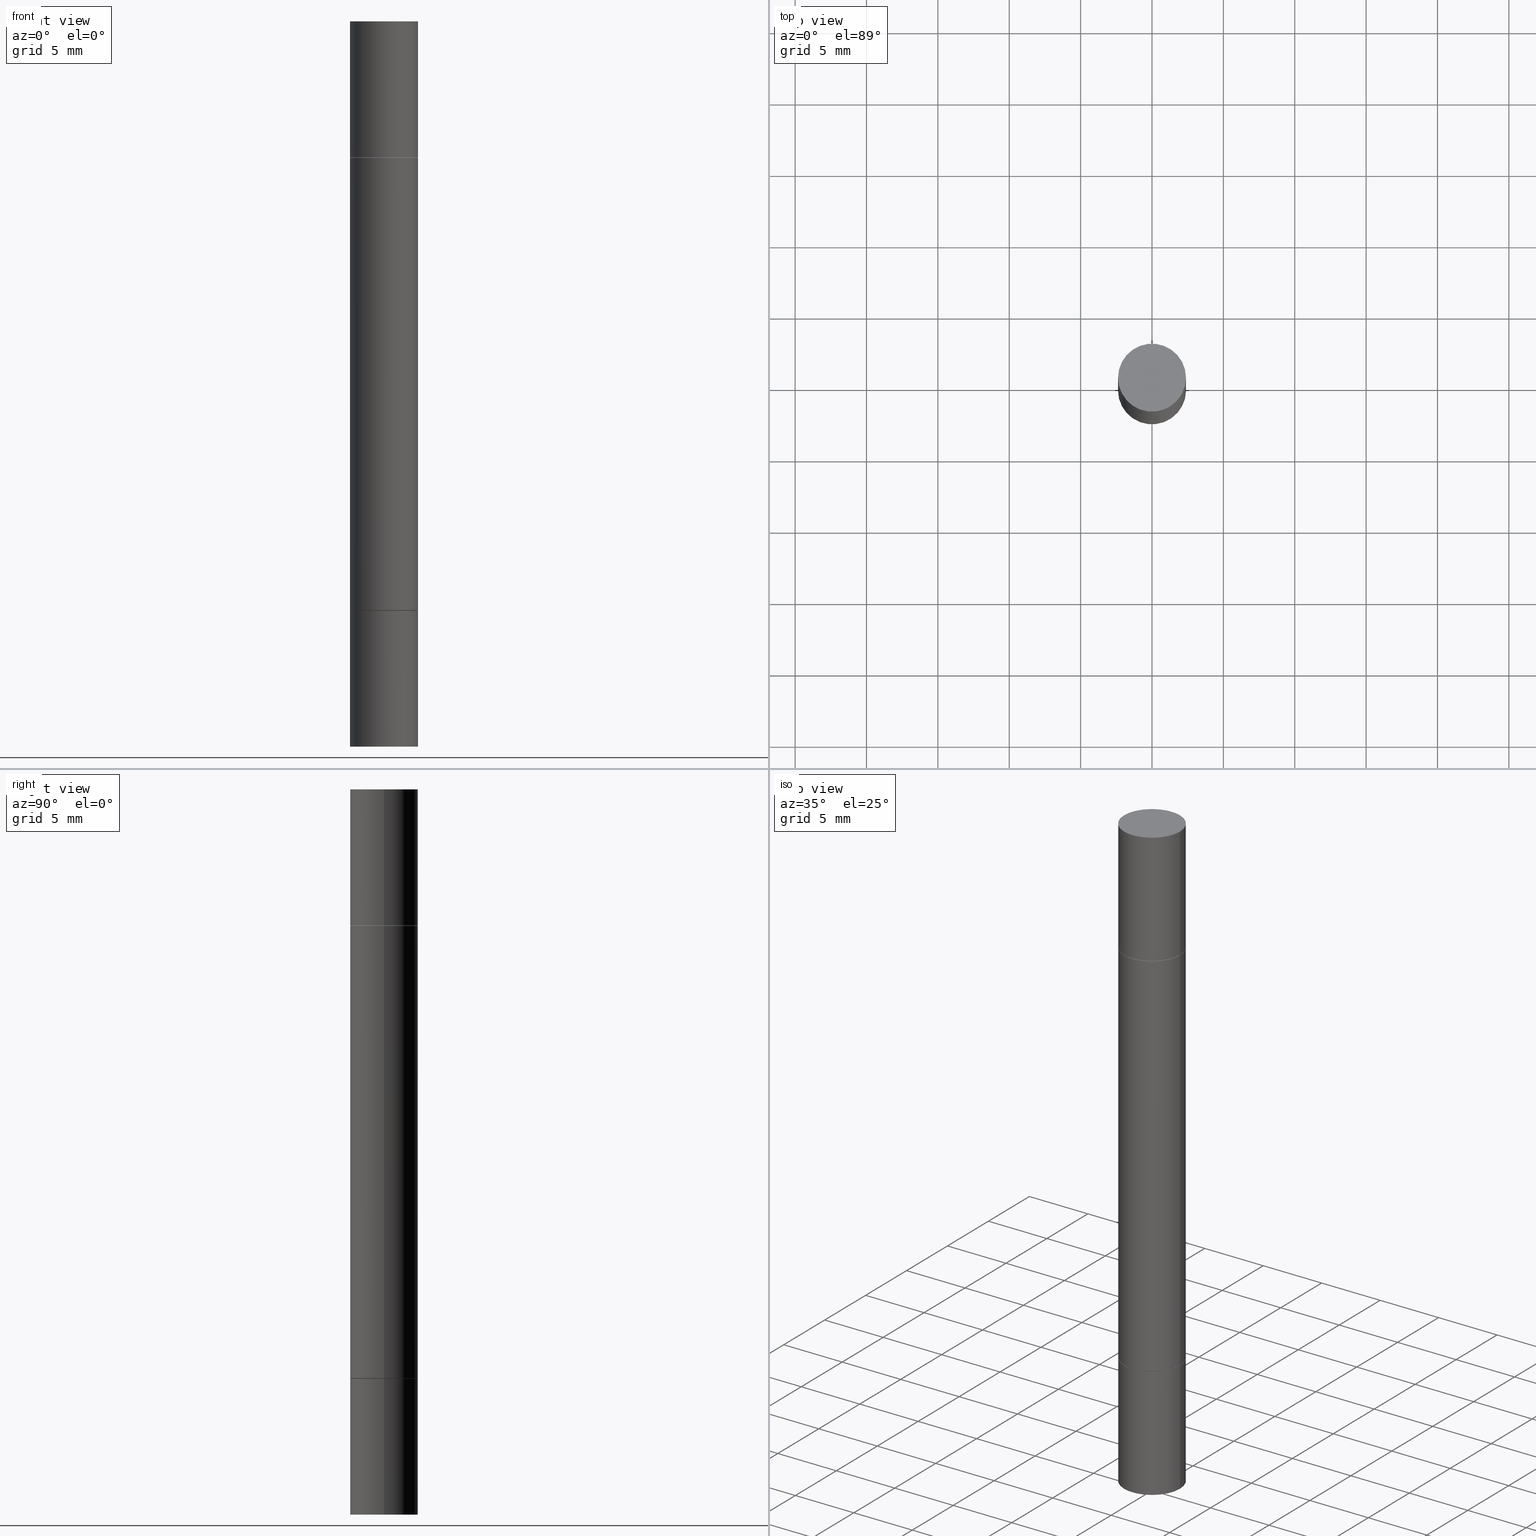
[diagram: canonical four-view strip — front | top / right | iso, engineering-drawing reading convention]
A machine part, canonical four-view strip (front | top / right | iso — engineering-drawing reading convention). The complete STEP part file that produces these views, byte-faithful:
ISO-10303-21;
HEADER;
FILE_DESCRIPTION (( 'STEP AP203' ),
    '1' );
FILE_NAME ('39671.STEP',
    '2024-03-04T15:44:00',
    ( '' ),
    ( '' ),
    'SwSTEP 2.0',
    'SolidWorks 2023',
    '' );
FILE_SCHEMA (( 'CONFIG_CONTROL_DESIGN' ));
ENDSEC;

DATA;
#1 = AXIS2_PLACEMENT_3D ( 'NONE', #356, #513, #463 ) ;
#2 = CIRCLE ( 'NONE', #123, 0.09274999999999999911 ) ;
#3 = ORIENTED_EDGE ( 'NONE', *, *, #119, .T. ) ;
#4 = DIRECTION ( 'NONE',  ( -2.438088387897960049E-29, 3.491481338843145188E-15, 1.000000000000000000 ) ) ;
#5 = DIRECTION ( 'NONE',  ( -2.445468806185136597E-29, -3.492890411551752677E-15, -1.000000000000000000 ) ) ;
#6 = PRODUCT_RELATED_PRODUCT_CATEGORY ( 'detail', '', ( #592 ) ) ;
#7 = CARTESIAN_POINT ( 'NONE',  ( 0.09274999999999999911, -6.321326963975513703E-15, -1.625000000000000222 ) ) ;
#8 = DIRECTION ( 'NONE',  ( -1.000000000000000000, 6.982962677686265922E-15, -9.839502134516470631E-33 ) ) ;
#9 = EDGE_CURVE ( 'NONE', #650, #570, #140, .T. ) ;
#10 = FACE_OUTER_BOUND ( 'NONE', #169, .T. ) ;
#11 = EDGE_CURVE ( 'NONE', #182, #301, #95, .T. ) ;
#12 = CARTESIAN_POINT ( 'NONE',  ( 6.546527510331273416E-16, 0.09374999999999870937, -0.3749999999999999445 ) ) ;
#13 = ORIENTED_EDGE ( 'NONE', *, *, #551, .T. ) ;
#14 = AXIS2_PLACEMENT_3D ( 'NONE', #145, #255, #358 ) ;
#15 = LINE ( 'NONE', #388, #186 ) ;
#16 = AXIS2_PLACEMENT_3D ( 'NONE', #275, #435, #221 ) ;
#17 = DIRECTION ( 'NONE',  ( 2.438088387897959769E-29, 3.492890411551753071E-15, 1.000000000000000000 ) ) ;
#18 = ADVANCED_FACE ( 'NONE', ( #198 ), #627, .F. ) ;
#19 = EDGE_LOOP ( 'NONE', ( #407, #456 ) ) ;
#20 = CYLINDRICAL_SURFACE ( 'NONE', #138, 0.09375000000000001388 ) ;
#21 = FACE_OUTER_BOUND ( 'NONE', #346, .T. ) ;
#22 = ORIENTED_EDGE ( 'NONE', *, *, #334, .F. ) ;
#23 = CARTESIAN_POINT ( 'NONE',  ( 0.09375000000000002776, -6.324818445314356710E-15, -1.623999999999999888 ) ) ;
#24 = EDGE_LOOP ( 'NONE', ( #550, #387 ) ) ;
#25 = CALENDAR_DATE ( 2024, 4, 3 ) ;
#26 = VECTOR ( 'NONE', #669, 39.37007874015748854 ) ;
#27 = AXIS2_PLACEMENT_3D ( 'NONE', #670, #94, #620 ) ;
#28 = CARTESIAN_POINT ( 'NONE',  ( 2.445468806185136317E-29, -3.491481338843145188E-15, -0.9999999999999998890 ) ) ;
#29 = EDGE_LOOP ( 'NONE', ( #247, #479, #555, #233 ) ) ;
#30 = DIMENSIONAL_EXPONENTS ( 1.000000000000000000, 0.000000000000000000, 0.000000000000000000, 0.000000000000000000, 0.000000000000000000, 0.000000000000000000, 0.000000000000000000 ) ;
#31 = PERSON_AND_ORGANIZATION_ROLE ( 'design_supplier' ) ;
#32 = CARTESIAN_POINT ( 'NONE',  ( 0.000000000000000000, -6.984371750394897471E-15, -1.999999999999999778 ) ) ;
#33 = ORIENTED_EDGE ( 'NONE', *, *, #462, .F. ) ;
#34 = ADVANCED_FACE ( 'NONE', ( #41 ), #616, .T. ) ;
#35 = DIRECTION ( 'NONE',  ( -2.445468806185136597E-29, 3.491481338843145583E-15, 1.000000000000000000 ) ) ;
#36 = EDGE_LOOP ( 'NONE', ( #265, #13, #121, #478 ) ) ;
#37 = DIRECTION ( 'NONE',  ( 1.000000000000000000, -6.982962677686261189E-15, 0.000000000000000000 ) ) ;
#38 = AXIS2_PLACEMENT_3D ( 'NONE', #565, #461, #91 ) ;
#39 = AXIS2_PLACEMENT_3D ( 'NONE', #677, #209, #580 ) ;
#40 =( GEOMETRIC_REPRESENTATION_CONTEXT ( 3 ) GLOBAL_UNCERTAINTY_ASSIGNED_CONTEXT ( ( #390 ) ) GLOBAL_UNIT_ASSIGNED_CONTEXT ( ( #185, #248, #460 ) ) REPRESENTATION_CONTEXT ( 'NONE', 'WORKASPACE' ) );
#41 = FACE_OUTER_BOUND ( 'NONE', #116, .T. ) ;
#42 = CYLINDRICAL_SURFACE ( 'NONE', #492, 0.09375000000000001388 ) ;
#43 = DIRECTION ( 'NONE',  ( -2.445468806185136877E-29, -3.492890411551753071E-15, -1.000000000000000000 ) ) ;
#44 = DIRECTION ( 'NONE',  ( 2.445468806185136597E-29, 3.492890411551752677E-15, 1.000000000000000000 ) ) ;
#45 = VECTOR ( 'NONE', #680, 39.37007874015748143 ) ;
#46 = CIRCLE ( 'NONE', #69, 0.09274999999999999911 ) ;
#47 = DIRECTION ( 'NONE',  ( 1.000000000000000000, -6.982962677686267499E-15, 0.000000000000000000 ) ) ;
#48 = CARTESIAN_POINT ( 'NONE',  ( 3.973886810050848091E-29, -1.308424831623298828E-15, -0.3749999999999993894 ) ) ;
#49 = CARTESIAN_POINT ( 'NONE',  ( -0.09375000000000001388, -5.662176111878106581E-15, -1.625000000000000000 ) ) ;
#50 = ORIENTED_EDGE ( 'NONE', *, *, #484, .T. ) ;
#51 = FACE_OUTER_BOUND ( 'NONE', #636, .T. ) ;
#52 = DIRECTION ( 'NONE',  ( 1.000000000000000000, -6.982962677686269866E-15, 0.000000000000000000 ) ) ;
#53 = AXIS2_PLACEMENT_3D ( 'NONE', #386, #115, #52 ) ;
#54 = EDGE_CURVE ( 'NONE', #510, #250, #137, .T. ) ;
#55 = VECTOR ( 'NONE', #193, 39.37007874015748143 ) ;
#56 = CIRCLE ( 'NONE', #240, 0.09274999999999999911 ) ;
#57 = LOCAL_TIME ( 10, 44, 0.000000000000000000, #122 ) ;
#58 = DIRECTION ( 'NONE',  ( 1.000000000000000000, -6.982962677686261189E-15, 0.000000000000000000 ) ) ;
#59 = DIRECTION ( 'NONE',  ( 2.438088387897959769E-29, 3.492890411551753071E-15, 1.000000000000000000 ) ) ;
#60 = EDGE_CURVE ( 'NONE', #585, #501, #467, .T. ) ;
#61 = CARTESIAN_POINT ( 'NONE',  ( 0.000000000000000000, -6.984371750394897471E-15, -1.999999999999999778 ) ) ;
#62 = DIRECTION ( 'NONE',  ( 2.445468806185136597E-29, 3.492890411551752677E-15, 1.000000000000000000 ) ) ;
#63 = APPROVAL ( #398, 'UNSPECIFIED' ) ;
#64 = CARTESIAN_POINT ( 'NONE',  ( 3.971441341244661927E-29, -1.311917722034852351E-15, -0.3759999999999997788 ) ) ;
#65 = DESIGN_CONTEXT ( 'detailed design', #316, 'design' ) ;
#66 = EDGE_LOOP ( 'NONE', ( #86, #50, #106, #599 ) ) ;
#67 = AXIS2_PLACEMENT_3D ( 'NONE', #615, #143, #553 ) ;
#68 = DIRECTION ( 'NONE',  ( 1.000000000000000000, -6.982962677686261189E-15, 0.000000000000000000 ) ) ;
#69 = AXIS2_PLACEMENT_3D ( 'NONE', #154, #101, #47 ) ;
#70 = DIRECTION ( 'NONE',  ( 1.000000000000000000, -6.982962677686261977E-15, 0.000000000000000000 ) ) ;
#71 = VERTEX_POINT ( 'NONE', #373 ) ;
#72 = ORIENTED_EDGE ( 'NONE', *, *, #11, .F. ) ;
#73 = DIRECTION ( 'NONE',  ( 1.000000000000000000, 0.000000000000000000, 0.000000000000000000 ) ) ;
#74 = CARTESIAN_POINT ( 'NONE',  ( 3.973886810050848091E-29, -1.308424831623298828E-15, -0.3749999999999993894 ) ) ;
#75 = ORIENTED_EDGE ( 'NONE', *, *, #607, .F. ) ;
#76 = EDGE_LOOP ( 'NONE', ( #279, #204 ) ) ;
#77 = ORIENTED_EDGE ( 'NONE', *, *, #428, .T. ) ;
#78 = PERSON_AND_ORGANIZATION ( #210, #226 ) ;
#79 = CARTESIAN_POINT ( 'NONE',  ( 0.09274999999999999911, -1.956094619978700121E-15, -0.3749999999999993894 ) ) ;
#80 = ORIENTED_EDGE ( 'NONE', *, *, #85, .T. ) ;
#81 = MECHANICAL_CONTEXT ( 'NONE', #260, 'mechanical' ) ;
#82 = AXIS2_PLACEMENT_3D ( 'NONE', #414, #35, #84 ) ;
#83 = AXIS2_PLACEMENT_3D ( 'NONE', #411, #608, #292 ) ;
#84 = DIRECTION ( 'NONE',  ( 1.000000000000000000, -6.982962677686270655E-15, 0.000000000000000000 ) ) ;
#85 = EDGE_CURVE ( 'NONE', #501, #243, #239, .T. ) ;
#86 = ORIENTED_EDGE ( 'NONE', *, *, #462, .T. ) ;
#87 = APPROVAL_DATE_TIME ( #564, #367 ) ;
#88 = DIRECTION ( 'NONE',  ( 1.000000000000000000, -6.982962677686265922E-15, 0.000000000000000000 ) ) ;
#89 = ORIENTED_EDGE ( 'NONE', *, *, #509, .F. ) ;
#90 = APPROVAL_ROLE ( '' ) ;
#91 = DIRECTION ( 'NONE',  ( 0.000000000000000000, 1.000000000000000000, -3.492185875197449524E-15 ) ) ;
#92 = EDGE_CURVE ( 'NONE', #301, #108, #378, .T. ) ;
#93 = DIRECTION ( 'NONE',  ( -2.438088387897959769E-29, -3.492890411551753071E-15, -1.000000000000000000 ) ) ;
#94 = DIRECTION ( 'NONE',  ( -2.445468806185136597E-29, 3.491481338843145583E-15, 1.000000000000000000 ) ) ;
#95 = CIRCLE ( 'NONE', #1, 0.09375000000000001388 ) ;
#96 = ADVANCED_FACE ( 'NONE', ( #436 ), #486, .T. ) ;
#97 = AXIS2_PLACEMENT_3D ( 'NONE', #99, #44, #150 ) ;
#98 = ADVANCED_FACE ( 'NONE', ( #223 ), #598, .T. ) ;
#99 = CARTESIAN_POINT ( 'NONE',  ( 4.890937612370273194E-29, 1.409072708608417355E-18, 2.731847993664263218E-16 ) ) ;
#100 = FACE_OUTER_BOUND ( 'NONE', #29, .T. ) ;
#101 = DIRECTION ( 'NONE',  ( 2.445468806185136597E-29, 3.492890411551752677E-15, 1.000000000000000000 ) ) ;
#102 = ORIENTED_EDGE ( 'NONE', *, *, #227, .F. ) ;
#103 = AXIS2_PLACEMENT_3D ( 'NONE', #483, #276, #273 ) ;
#104 = AXIS2_PLACEMENT_3D ( 'NONE', #28, #284, #500 ) ;
#105 = CARTESIAN_POINT ( 'NONE',  ( -0.09375000000000001388, 6.661338147750940229E-16, -4.611501647113973995E-30 ) ) ;
#106 = ORIENTED_EDGE ( 'NONE', *, *, #306, .F. ) ;
#107 = DIRECTION ( 'NONE',  ( -2.445468806185136597E-29, -3.492890411551752677E-15, -1.000000000000000000 ) ) ;
#108 = VERTEX_POINT ( 'NONE', #277 ) ;
#109 = CARTESIAN_POINT ( 'NONE',  ( 0.09374999999999990286, -7.639024501427984975E-15, -1.999999999999999778 ) ) ;
#110 = CARTESIAN_POINT ( 'NONE',  ( 6.546527510331364135E-16, 0.09375000000000001388, 0.000000000000000000 ) ) ;
#111 = ORIENTED_EDGE ( 'NONE', *, *, #92, .F. ) ;
#112 = CARTESIAN_POINT ( 'NONE',  ( 3.973886810050848091E-29, -5.673657175620113002E-15, -1.625000000000000222 ) ) ;
#113 = FACE_OUTER_BOUND ( 'NONE', #66, .T. ) ;
#114 = CARTESIAN_POINT ( 'NONE',  ( 3.973886810050848091E-29, -1.308424831623298828E-15, -0.3749999999999993894 ) ) ;
#115 = DIRECTION ( 'NONE',  ( -2.445468806185136597E-29, -3.492890411551752677E-15, -1.000000000000000000 ) ) ;
#116 = EDGE_LOOP ( 'NONE', ( #563, #332, #22, #111 ) ) ;
#117 = CARTESIAN_POINT ( 'NONE',  ( 0.09274999999999999911, -1.956094619978700121E-15, -0.3749999999999993894 ) ) ;
#118 = PLANE ( 'NONE',  #103 ) ;
#119 = EDGE_CURVE ( 'NONE', #165, #570, #184, .T. ) ;
#120 = MANIFOLD_SOLID_BREP ( 'Mirror1[4]', #350 ) ;
#121 = ORIENTED_EDGE ( 'NONE', *, *, #431, .T. ) ;
#122 = COORDINATED_UNIVERSAL_TIME_OFFSET ( 5, 0, .BEHIND. ) ;
#123 = AXIS2_PLACEMENT_3D ( 'NONE', #473, #625, #475 ) ;
#124 = SECURITY_CLASSIFICATION ( '', '', #556 ) ;
#125 = CARTESIAN_POINT ( 'NONE',  ( 0.09274999999999999911, -1.956094619978700121E-15, -0.3749999999999993894 ) ) ;
#126 = ORIENTED_EDGE ( 'NONE', *, *, #428, .F. ) ;
#127 = APPROVAL_DATE_TIME ( #340, #63 ) ;
#128 = PLANE ( 'NONE',  #38 ) ;
#129 = ADVANCED_FACE ( 'NONE', ( #219 ), #118, .F. ) ;
#130 = VERTEX_POINT ( 'NONE', #168 ) ;
#131 = APPLICATION_PROTOCOL_DEFINITION ( 'international standard', 'config_control_design', 1994, #260 ) ;
#132 = MANIFOLD_SOLID_BREP ( 'Mirror1[1]', #395 ) ;
#133 = EDGE_CURVE ( 'NONE', #130, #250, #542, .T. ) ;
#134 = DIRECTION ( 'NONE',  ( 1.000000000000000000, -6.982962677686265922E-15, 0.000000000000000000 ) ) ;
#135 = ORIENTED_EDGE ( 'NONE', *, *, #649, .T. ) ;
#136 = APPROVAL_STATUS ( 'not_yet_approved' ) ;
#137 = CIRCLE ( 'NONE', #524, 0.09375000000000002776 ) ;
#138 = AXIS2_PLACEMENT_3D ( 'NONE', #61, #107, #68 ) ;
#139 = DIRECTION ( 'NONE',  ( -2.445468806185136597E-29, 3.491481338843145583E-15, 1.000000000000000000 ) ) ;
#140 = LINE ( 'NONE', #527, #45 ) ;
#141 = CALENDAR_DATE ( 2024, 4, 3 ) ;
#142 = ADVANCED_FACE ( 'NONE', ( #113 ), #490, .T. ) ;
#143 = DIRECTION ( 'NONE',  ( -2.445468806185136597E-29, -3.492890411551752677E-15, -1.000000000000000000 ) ) ;
#144 = ORIENTED_EDGE ( 'NONE', *, *, #551, .F. ) ;
#145 = CARTESIAN_POINT ( 'NONE',  ( 0.000000000000000000, 0.000000000000000000, 0.000000000000000000 ) ) ;
#146 = CC_DESIGN_DATE_AND_TIME_ASSIGNMENT ( #511, #651, ( #442 ) ) ;
#147 = DIRECTION ( 'NONE',  ( -0.7071067811864326647, 7.493145998869937642E-15, 0.7071067811866621478 ) ) ;
#148 = VERTEX_POINT ( 'NONE', #327 ) ;
#149 = ADVANCED_FACE ( 'NONE', ( #491 ), #426, .T. ) ;
#150 = DIRECTION ( 'NONE',  ( 1.000000000000000000, -6.982962677686265922E-15, 0.000000000000000000 ) ) ;
#151 = AXIS2_PLACEMENT_3D ( 'NONE', #296, #341, #559 ) ;
#152 = VECTOR ( 'NONE', #576, 39.37007874015748143 ) ;
#153 = CC_DESIGN_APPROVAL ( #392, ( #442 ) ) ;
#154 = CARTESIAN_POINT ( 'NONE',  ( 3.973886810050848091E-29, -1.308424831623298828E-15, -0.3749999999999993894 ) ) ;
#155 = CARTESIAN_POINT ( 'NONE',  ( -0.09375000000000002776, -2.848309651552061343E-15, -1.623999999999999888 ) ) ;
#156 = ADVANCED_FACE ( 'NONE', ( #487 ), #540, .F. ) ;
#157 = PRODUCT_DEFINITION_SHAPE ( 'NONE', 'NONE',  #442 ) ;
#158 = LINE ( 'NONE', #679, #383 ) ;
#159 = ADVANCED_FACE ( 'NONE', ( #21 ), #434, .T. ) ;
#160 = CARTESIAN_POINT ( 'NONE',  ( -0.09274999999999999911, -6.721136423299893564E-16, -0.3749999999999993894 ) ) ;
#161 = AXIS2_PLACEMENT_3D ( 'NONE', #394, #5, #382 ) ;
#162 = AXIS2_PLACEMENT_3D ( 'NONE', #480, #377, #58 ) ;
#163 = DIRECTION ( 'NONE',  ( 0.7071067811864326647, -7.407546758113846226E-15, -0.7071067811866621478 ) ) ;
#164 = ADVANCED_FACE ( 'NONE', ( #648 ), #270, .T. ) ;
#165 = VERTEX_POINT ( 'NONE', #319 ) ;
#166 = ORIENTED_EDGE ( 'NONE', *, *, #85, .F. ) ;
#167 = CARTESIAN_POINT ( 'NONE',  ( 0.09375000000000001388, -6.532436783244791280E-16, 2.731847993664263218E-16 ) ) ;
#168 = CARTESIAN_POINT ( 'NONE',  ( 0.09375000000000002776, -1.966570473067939461E-15, -0.3759999999999997788 ) ) ;
#169 = EDGE_LOOP ( 'NONE', ( #102, #660, #3, #618 ) ) ;
#170 = CARTESIAN_POINT ( 'NONE',  ( 0.09375000000000001388, -1.963077582656387319E-15, -0.3749999999999996669 ) ) ;
#171 = LINE ( 'NONE', #430, #251 ) ;
#172 = CIRCLE ( 'NONE', #409, 0.09274999999999999911 ) ;
#173 = PLANE ( 'NONE',  #16 ) ;
#174 = CYLINDRICAL_SURFACE ( 'NONE', #53, 0.09374999999999990286 ) ;
#175 = CC_DESIGN_PERSON_AND_ORGANIZATION_ASSIGNMENT ( #347, #610, ( #592 ) ) ;
#176 = EDGE_LOOP ( 'NONE', ( #342, #391, #220, #667 ) ) ;
#177 = DIRECTION ( 'NONE',  ( 1.000000000000000000, -6.982962677686265922E-15, 4.876176775795935793E-29 ) ) ;
#178 = DIRECTION ( 'NONE',  ( 2.438088387897960049E-29, -3.491481338843145188E-15, -1.000000000000000000 ) ) ;
#179 = ORIENTED_EDGE ( 'NONE', *, *, #329, .T. ) ;
#180 = COORDINATED_UNIVERSAL_TIME_OFFSET ( 5, 0, .BEHIND. ) ;
#181 = DIRECTION ( 'NONE',  ( 1.000000000000000000, -6.982962677686266711E-15, 0.000000000000000000 ) ) ;
#182 = VERTEX_POINT ( 'NONE', #533 ) ;
#183 = ORIENTED_EDGE ( 'NONE', *, *, #632, .T. ) ;
#184 = CIRCLE ( 'NONE', #408, 0.09375000000000001388 ) ;
#185 =( CONVERSION_BASED_UNIT ( 'INCH', #410 ) LENGTH_UNIT ( ) NAMED_UNIT ( #30 ) );
#186 = VECTOR ( 'NONE', #326, 39.37007874015748854 ) ;
#187 = CARTESIAN_POINT ( 'NONE',  ( 3.973886810050846970E-29, -1.308424831623299814E-15, -0.3749999999999996669 ) ) ;
#188 = VERTEX_POINT ( 'NONE', #642 ) ;
#189 = DIRECTION ( 'NONE',  ( 1.000000000000000000, -6.982962677686265922E-15, 0.000000000000000000 ) ) ;
#190 = ADVANCED_FACE ( 'NONE', ( #638 ), #174, .T. ) ;
#191 = EDGE_LOOP ( 'NONE', ( #33, #297 ) ) ;
#192 = COORDINATED_UNIVERSAL_TIME_OFFSET ( 5, 0, .BEHIND. ) ;
#193 = DIRECTION ( 'NONE',  ( -2.445468806185136877E-29, -3.492890411551753071E-15, -1.000000000000000000 ) ) ;
#194 = ORIENTED_EDGE ( 'NONE', *, *, #354, .F. ) ;
#195 = EDGE_CURVE ( 'NONE', #501, #588, #171, .T. ) ;
#196 = AXIS2_PLACEMENT_3D ( 'NONE', #423, #626, #617 ) ;
#197 = CARTESIAN_POINT ( 'NONE',  ( -0.09375000000000001388, -1.033619216626503578E-17, -0.3749999999999996669 ) ) ;
#198 = FACE_OUTER_BOUND ( 'NONE', #24, .T. ) ;
#199 = CC_DESIGN_PERSON_AND_ORGANIZATION_ASSIGNMENT ( #231, #647, ( #442 ) ) ;
#200 = CARTESIAN_POINT ( 'NONE',  ( 0.09375000000000001388, -7.637615428719378669E-15, -2.000000000000000000 ) ) ;
#201 = EDGE_CURVE ( 'NONE', #243, #501, #577, .T. ) ;
#202 = CARTESIAN_POINT ( 'NONE',  ( 3.971441341244661927E-29, -1.311917722034852351E-15, -0.3759999999999997788 ) ) ;
#203 = CARTESIAN_POINT ( 'NONE',  ( -0.09375000000000002776, -6.687460347437705766E-16, -0.3759999999999997788 ) ) ;
#204 = ORIENTED_EDGE ( 'NONE', *, *, #311, .T. ) ;
#205 = CARTESIAN_POINT ( 'NONE',  ( 0.09375000000000001388, -1.963077582656387319E-15, -0.3749999999999996669 ) ) ;
#206 = AXIS2_PLACEMENT_3D ( 'NONE', #348, #654, #189 ) ;
#207 = AXIS2_PLACEMENT_3D ( 'NONE', #261, #528, #212 ) ;
#208 = PLANE ( 'NONE',  #536 ) ;
#209 = DIRECTION ( 'NONE',  ( -2.445468806185136597E-29, -3.492890411551752677E-15, -1.000000000000000000 ) ) ;
#210 = PERSON ( 'UNSPECIFIED', 'UNSPECIFIED', 'UNSPECIFIED', ('UNSPECIFIED'), ('UNSPECIFIED'), ('UNSPECIFIED') ) ;
#211 = VERTEX_POINT ( 'NONE', #345 ) ;
#212 = DIRECTION ( 'NONE',  ( 1.000000000000000000, -6.982962677686265922E-15, 0.000000000000000000 ) ) ;
#213 = ORIENTED_EDGE ( 'NONE', *, *, #583, .T. ) ;
#214 = VECTOR ( 'NONE', #645, 39.37007874015748143 ) ;
#215 = LOCAL_TIME ( 10, 44, 0.000000000000000000, #192 ) ;
#216 = ADVANCED_FACE ( 'NONE', ( #245 ), #287, .T. ) ;
#217 = VERTEX_POINT ( 'NONE', #125 ) ;
#218 = LINE ( 'NONE', #630, #472 ) ;
#219 = FACE_OUTER_BOUND ( 'NONE', #432, .T. ) ;
#220 = ORIENTED_EDGE ( 'NONE', *, *, #133, .T. ) ;
#221 = DIRECTION ( 'NONE',  ( -1.000000000000000000, 6.982962677686265922E-15, -4.876176775795935793E-29 ) ) ;
#222 = DIRECTION ( 'NONE',  ( 1.000000000000000000, -6.982962677686267499E-15, 0.000000000000000000 ) ) ;
#223 = FACE_OUTER_BOUND ( 'NONE', #400, .T. ) ;
#224 = AXIS2_PLACEMENT_3D ( 'NONE', #202, #582, #594 ) ;
#225 = ORIENTED_EDGE ( 'NONE', *, *, #537, .T. ) ;
#226 = ORGANIZATION ( 'UNSPECIFIED', 'UNSPECIFIED', '' ) ;
#227 = EDGE_CURVE ( 'NONE', #211, #650, #450, .T. ) ;
#228 = LINE ( 'NONE', #117, #324 ) ;
#229 = CARTESIAN_POINT ( 'NONE',  ( 3.973886810050846970E-29, -1.308424831623299814E-15, -0.3749999999999996669 ) ) ;
#230 = ORIENTED_EDGE ( 'NONE', *, *, #354, .T. ) ;
#231 = PERSON_AND_ORGANIZATION ( #210, #226 ) ;
#232 = DIRECTION ( 'NONE',  ( -2.445468806185136597E-29, -3.492890411551752677E-15, -1.000000000000000000 ) ) ;
#233 = ORIENTED_EDGE ( 'NONE', *, *, #583, .F. ) ;
#234 = ORIENTED_EDGE ( 'NONE', *, *, #195, .F. ) ;
#235 = CC_DESIGN_PERSON_AND_ORGANIZATION_ASSIGNMENT ( #658, #31, ( #339 ) ) ;
#236 = COORDINATED_UNIVERSAL_TIME_OFFSET ( 5, 0, .BEHIND. ) ;
#237 = DIRECTION ( 'NONE',  ( 1.000000000000000000, -6.982962677686267499E-15, 0.000000000000000000 ) ) ;
#238 = EDGE_LOOP ( 'NONE', ( #285, #77 ) ) ;
#239 = CIRCLE ( 'NONE', #224, 0.09375000000000002776 ) ;
#240 = AXIS2_PLACEMENT_3D ( 'NONE', #371, #359, #569 ) ;
#241 = DATE_AND_TIME ( #25, #613 ) ;
#242 = CARTESIAN_POINT ( 'NONE',  ( -0.09274999999999999911, -6.704298385368800158E-16, -0.3749999999999993894 ) ) ;
#243 = VERTEX_POINT ( 'NONE', #508 ) ;
#244 = APPROVAL_STATUS ( 'not_yet_approved' ) ;
#245 = FACE_OUTER_BOUND ( 'NONE', #606, .T. ) ;
#246 = EDGE_CURVE ( 'NONE', #148, #588, #628, .T. ) ;
#247 = ORIENTED_EDGE ( 'NONE', *, *, #649, .F. ) ;
#248 =( NAMED_UNIT ( * ) PLANE_ANGLE_UNIT ( ) SI_UNIT ( $, .RADIAN. ) );
#249 = DIRECTION ( 'NONE',  ( 1.000000000000000000, -6.982962677686261189E-15, 0.000000000000000000 ) ) ;
#250 = VERTEX_POINT ( 'NONE', #23 ) ;
#251 = VECTOR ( 'NONE', #331, 39.37007874015748143 ) ;
#252 = ADVANCED_FACE ( 'NONE', ( #465 ), #605, .F. ) ;
#253 = CIRCLE ( 'NONE', #548, 0.09375000000000002776 ) ;
#254 = CARTESIAN_POINT ( 'NONE',  ( 4.890937612370273194E-29, -6.982962677686291165E-15, -2.000000000000000000 ) ) ;
#255 = DIRECTION ( 'NONE',  ( -2.445468806185136597E-29, 3.491481338843145583E-15, 1.000000000000000000 ) ) ;
#256 = DIRECTION ( 'NONE',  ( 1.000000000000000000, -6.982962677686261189E-15, 0.000000000000000000 ) ) ;
#257 = DIRECTION ( 'NONE',  ( -2.445468806185136597E-29, 3.491481338843145583E-15, 1.000000000000000000 ) ) ;
#258 = ADVANCED_FACE ( 'NONE', ( #402 ), #567, .T. ) ;
#259 = ADVANCED_FACE ( 'NONE', ( #668 ), #128, .F. ) ;
#260 = APPLICATION_CONTEXT ( 'configuration controlled 3d designs of mechanical parts and assemblies' ) ;
#261 = CARTESIAN_POINT ( 'NONE',  ( 3.971441341244661927E-29, -1.311917722034852351E-15, -0.3759999999999997788 ) ) ;
#262 = CIRCLE ( 'NONE', #82, 0.09375000000000002776 ) ;
#263 = VECTOR ( 'NONE', #590, 39.37007874015748143 ) ;
#264 = LINE ( 'NONE', #105, #152 ) ;
#265 = ORIENTED_EDGE ( 'NONE', *, *, #595, .F. ) ;
#266 = DIRECTION ( 'NONE',  ( 1.000000000000000000, -6.982962677686267499E-15, 0.000000000000000000 ) ) ;
#267 = ORIENTED_EDGE ( 'NONE', *, *, #329, .F. ) ;
#268 = CYLINDRICAL_SURFACE ( 'NONE', #162, 0.09375000000000001388 ) ;
#269 = AXIS2_PLACEMENT_3D ( 'NONE', #323, #281, #222 ) ;
#270 = CYLINDRICAL_SURFACE ( 'NONE', #161, 0.09374999999999990286 ) ;
#271 = CIRCLE ( 'NONE', #207, 0.09375000000000002776 ) ;
#272 = LINE ( 'NONE', #7, #464 ) ;
#273 = DIRECTION ( 'NONE',  ( -1.000000000000000000, 6.982962677686265922E-15, -9.839502134516470631E-33 ) ) ;
#274 = EDGE_CURVE ( 'NONE', #217, #243, #300, .T. ) ;
#275 = CARTESIAN_POINT ( 'NONE',  ( 6.546527510331273416E-16, 0.09374999999999433786, -1.625000000000000222 ) ) ;
#276 = DIRECTION ( 'NONE',  ( 2.438088387897959769E-29, 3.492890411551753071E-15, 1.000000000000000000 ) ) ;
#277 = CARTESIAN_POINT ( 'NONE',  ( 0.09375000000000001388, -6.328309926653198928E-15, -1.625000000000000000 ) ) ;
#278 = CIRCLE ( 'NONE', #640, 0.09375000000000001388 ) ;
#279 = ORIENTED_EDGE ( 'NONE', *, *, #246, .T. ) ;
#280 = CARTESIAN_POINT ( 'NONE',  ( 3.973886810050846970E-29, -1.308424831623299814E-15, -0.3749999999999996669 ) ) ;
#281 = DIRECTION ( 'NONE',  ( -2.445468806185136597E-29, -3.492890411551752677E-15, -1.000000000000000000 ) ) ;
#282 = ORIENTED_EDGE ( 'NONE', *, *, #466, .F. ) ;
#283 = ORIENTED_EDGE ( 'NONE', *, *, #9, .T. ) ;
#284 = DIRECTION ( 'NONE',  ( -0.000000000000000000, -3.492185875197449130E-15, -1.000000000000000000 ) ) ;
#285 = ORIENTED_EDGE ( 'NONE', *, *, #509, .T. ) ;
#286 = PERSON_AND_ORGANIZATION_ROLE ( 'classification_officer' ) ;
#287 = CYLINDRICAL_SURFACE ( 'NONE', #361, 0.09375000000000001388 ) ;
#288 = CC_DESIGN_DATE_AND_TIME_ASSIGNMENT ( #241, #457, ( #124 ) ) ;
#289 = ORIENTED_EDGE ( 'NONE', *, *, #334, .T. ) ;
#290 = AXIS2_PLACEMENT_3D ( 'NONE', #74, #662, #237 ) ;
#291 = PERSON_AND_ORGANIZATION ( #210, #226 ) ;
#292 = DIRECTION ( 'NONE',  ( 1.000000000000000000, -6.982962677686266711E-15, 0.000000000000000000 ) ) ;
#293 = EDGE_CURVE ( 'NONE', #349, #422, #302, .T. ) ;
#294 = ORIENTED_EDGE ( 'NONE', *, *, #484, .F. ) ;
#295 = SHAPE_DEFINITION_REPRESENTATION ( #157, #370 ) ;
#296 = CARTESIAN_POINT ( 'NONE',  ( 3.973886810050848091E-29, -1.308424831623298828E-15, -0.3749999999999993894 ) ) ;
#297 = ORIENTED_EDGE ( 'NONE', *, *, #488, .F. ) ;
#298 = EDGE_CURVE ( 'NONE', #301, #182, #417, .T. ) ;
#299 = DATE_AND_TIME ( #141, #579 ) ;
#300 = LINE ( 'NONE', #79, #534 ) ;
#301 = VERTEX_POINT ( 'NONE', #200 ) ;
#302 = CIRCLE ( 'NONE', #621, 0.09375000000000001388 ) ;
#303 = CIRCLE ( 'NONE', #196, 0.09375000000000001388 ) ;
#304 = DIRECTION ( 'NONE',  ( -1.000000000000000000, 6.982962677686265922E-15, -9.839502134516470631E-33 ) ) ;
#305 = DIRECTION ( 'NONE',  ( 1.000000000000000000, -6.982962677686265922E-15, 4.876176775795935793E-29 ) ) ;
#306 = EDGE_CURVE ( 'NONE', #250, #510, #262, .T. ) ;
#307 = EDGE_CURVE ( 'NONE', #447, #313, #560, .T. ) ;
#308 = DIRECTION ( 'NONE',  ( -2.445468806185136597E-29, -3.492890411551752677E-15, -1.000000000000000000 ) ) ;
#309 = CARTESIAN_POINT ( 'NONE',  ( 0.000000000000000000, -6.984371750394897471E-15, -1.999999999999999778 ) ) ;
#310 = CLOSED_SHELL ( 'NONE', ( #142, #159, #619, #18, #520, #164, #496, #581 ) ) ;
#311 = EDGE_CURVE ( 'NONE', #588, #148, #351, .T. ) ;
#312 = CONICAL_SURFACE ( 'NONE', #578, 0.09274999999999999911, 0.7853981633972860754 ) ;
#313 = VERTEX_POINT ( 'NONE', #242 ) ;
#314 = FACE_OUTER_BOUND ( 'NONE', #499, .T. ) ;
#315 = ORIENTED_EDGE ( 'NONE', *, *, #119, .F. ) ;
#316 = APPLICATION_CONTEXT ( 'configuration controlled 3d designs of mechanical parts and assemblies' ) ;
#317 = ORIENTED_EDGE ( 'NONE', *, *, #623, .T. ) ;
#318 = DIRECTION ( 'NONE',  ( 2.445468806185136597E-29, 3.492890411551752677E-15, 1.000000000000000000 ) ) ;
#319 = CARTESIAN_POINT ( 'NONE',  ( -0.09375000000000001388, -1.033619216626503578E-17, -0.3749999999999996669 ) ) ;
#320 = EDGE_CURVE ( 'NONE', #211, #165, #455, .T. ) ;
#321 = DIRECTION ( 'NONE',  ( 2.445468806185136597E-29, 3.492890411551752677E-15, 1.000000000000000000 ) ) ;
#322 = CLOSED_SHELL ( 'NONE', ( #635, #413, #129, #216 ) ) ;
#323 = CARTESIAN_POINT ( 'NONE',  ( 3.973886810050848091E-29, -1.308424831623298828E-15, -0.3749999999999993894 ) ) ;
#324 = VECTOR ( 'NONE', #163, 39.37007874015748854 ) ;
#325 = ORIENTED_EDGE ( 'NONE', *, *, #201, .F. ) ;
#326 = DIRECTION ( 'NONE',  ( -0.7071067811864326647, 2.381258160590078114E-15, -0.7071067811866621478 ) ) ;
#327 = CARTESIAN_POINT ( 'NONE',  ( 0.09374999999999990286, -3.056352281472084301E-15, -0.9999999999999998890 ) ) ;
#328 = EDGE_CURVE ( 'NONE', #130, #427, #253, .T. ) ;
#329 = EDGE_CURVE ( 'NONE', #570, #165, #396, .T. ) ;
#330 = LINE ( 'NONE', #109, #263 ) ;
#331 = DIRECTION ( 'NONE',  ( -2.445468806185136877E-29, -3.492890411551753071E-15, -1.000000000000000000 ) ) ;
#332 = ORIENTED_EDGE ( 'NONE', *, *, #384, .T. ) ;
#333 = DIRECTION ( 'NONE',  ( -2.445468806185136597E-29, -3.492890411551752677E-15, -1.000000000000000000 ) ) ;
#334 = EDGE_CURVE ( 'NONE', #108, #459, #451, .T. ) ;
#335 = DIRECTION ( 'NONE',  ( -2.445468806185136597E-29, 3.491481338843145583E-15, 1.000000000000000000 ) ) ;
#336 = ORIENTED_EDGE ( 'NONE', *, *, #227, .T. ) ;
#337 = AXIS2_PLACEMENT_3D ( 'NONE', #523, #521, #266 ) ;
#338 = EDGE_LOOP ( 'NONE', ( #289, #230 ) ) ;
#339 = PRODUCT_DEFINITION_FORMATION_WITH_SPECIFIED_SOURCE ( 'ANY', '', #592, .NOT_KNOWN. ) ;
#340 = DATE_AND_TIME ( #352, #57 ) ;
#341 = DIRECTION ( 'NONE',  ( -2.438088387897959769E-29, -3.492890411551753071E-15, -1.000000000000000000 ) ) ;
#342 = ORIENTED_EDGE ( 'NONE', *, *, #537, .F. ) ;
#343 = ORIENTED_EDGE ( 'NONE', *, *, #133, .F. ) ;
#344 = PERSON_AND_ORGANIZATION ( #210, #226 ) ;
#345 = CARTESIAN_POINT ( 'NONE',  ( -0.09375000000000001388, -1.033619216626503578E-17, 2.731847993664286391E-16 ) ) ;
#346 = EDGE_LOOP ( 'NONE', ( #379, #225, #657, #343 ) ) ;
#347 = PERSON_AND_ORGANIZATION ( #210, #226 ) ;
#348 = CARTESIAN_POINT ( 'NONE',  ( 4.890937612370273194E-29, 1.409072708608417355E-18, 2.731847993664263218E-16 ) ) ;
#349 = VERTEX_POINT ( 'NONE', #197 ) ;
#350 = CLOSED_SHELL ( 'NONE', ( #506, #98, #156, #656 ) ) ;
#351 = CIRCLE ( 'NONE', #104, 0.09374999999999990286 ) ;
#352 = CALENDAR_DATE ( 2024, 4, 3 ) ;
#353 = CARTESIAN_POINT ( 'NONE',  ( 2.445468806185136317E-29, -3.491481338843145188E-15, -0.9999999999999998890 ) ) ;
#354 = EDGE_CURVE ( 'NONE', #459, #108, #303, .T. ) ;
#355 = MANIFOLD_SOLID_BREP ( 'Mirror1[3]', #322 ) ;
#356 = CARTESIAN_POINT ( 'NONE',  ( 4.890937612370273194E-29, -6.982962677686291165E-15, -2.000000000000000000 ) ) ;
#357 = DIRECTION ( 'NONE',  ( 0.000000000000000000, 1.000000000000000000, -2.913971193241883922E-15 ) ) ;
#358 = DIRECTION ( 'NONE',  ( 1.000000000000000000, -6.982962677686265922E-15, 4.876176775795935793E-29 ) ) ;
#359 = DIRECTION ( 'NONE',  ( -2.445468806185136597E-29, 3.491481338843145583E-15, 1.000000000000000000 ) ) ;
#360 = ORIENTED_EDGE ( 'NONE', *, *, #11, .T. ) ;
#361 = AXIS2_PLACEMENT_3D ( 'NONE', #32, #557, #249 ) ;
#362 = CONICAL_SURFACE ( 'NONE', #337, 0.09274999999999999911, 0.7853981633972860754 ) ;
#363 = CIRCLE ( 'NONE', #666, 0.09375000000000001388 ) ;
#364 = CARTESIAN_POINT ( 'NONE',  ( 6.546527510331364135E-16, 0.09375000000000001388, 0.000000000000000000 ) ) ;
#365 = APPROVAL_PERSON_ORGANIZATION ( #291, #392, #90 ) ;
#366 = ADVANCED_FACE ( 'NONE', ( #314 ), #362, .T. ) ;
#367 = APPROVAL ( #244, 'UNSPECIFIED' ) ;
#368 = CARTESIAN_POINT ( 'NONE',  ( -0.09375000000000002776, -6.687460347437705766E-16, -0.3759999999999997788 ) ) ;
#369 = FACE_OUTER_BOUND ( 'NONE', #663, .T. ) ;
#370 = ADVANCED_BREP_SHAPE_REPRESENTATION ( '39671', ( #574, #132, #355, #120, #575, #562 ), #40 ) ;
#371 = CARTESIAN_POINT ( 'NONE',  ( 3.973886810050848091E-29, -5.673657175620113002E-15, -1.625000000000000222 ) ) ;
#372 = AXIS2_PLACEMENT_3D ( 'NONE', #544, #232, #445 ) ;
#373 = CARTESIAN_POINT ( 'NONE',  ( -0.09375000000000001388, -1.033619216626503578E-17, 2.731847993664286391E-16 ) ) ;
#374 = DIRECTION ( 'NONE',  ( -2.445468806185136877E-29, -3.492890411551753071E-15, -1.000000000000000000 ) ) ;
#375 = ORIENTED_EDGE ( 'NONE', *, *, #607, .T. ) ;
#376 = ORIENTED_EDGE ( 'NONE', *, *, #246, .F. ) ;
#377 = DIRECTION ( 'NONE',  ( -2.445468806185136597E-29, -3.492890411551752677E-15, -1.000000000000000000 ) ) ;
#378 = LINE ( 'NONE', #601, #481 ) ;
#379 = ORIENTED_EDGE ( 'NONE', *, *, #431, .F. ) ;
#380 = FACE_OUTER_BOUND ( 'NONE', #191, .T. ) ;
#381 = AXIS2_PLACEMENT_3D ( 'NONE', #591, #178, #389 ) ;
#382 = DIRECTION ( 'NONE',  ( 1.000000000000000000, -6.982962677686269866E-15, 0.000000000000000000 ) ) ;
#383 = VECTOR ( 'NONE', #147, 39.37007874015748854 ) ;
#384 = EDGE_CURVE ( 'NONE', #182, #459, #264, .T. ) ;
#385 = CARTESIAN_POINT ( 'NONE',  ( -0.09374999999999990286, -1.758527843147917488E-15, -0.9999999999999998890 ) ) ;
#386 = CARTESIAN_POINT ( 'NONE',  ( 0.000000000000000000, -6.984371750394897471E-15, -1.999999999999999778 ) ) ;
#387 = ORIENTED_EDGE ( 'NONE', *, *, #595, .T. ) ;
#388 = CARTESIAN_POINT ( 'NONE',  ( -0.09274999999999999911, -6.721136423299893564E-16, -0.3749999999999993894 ) ) ;
#389 = DIRECTION ( 'NONE',  ( -1.000000000000000000, 6.982962677686265922E-15, -4.876176775795935793E-29 ) ) ;
#390 = UNCERTAINTY_MEASURE_WITH_UNIT (LENGTH_MEASURE( 1.000000000000000082E-05 ), #185, 'distance_accuracy_value', 'NONE');
#391 = ORIENTED_EDGE ( 'NONE', *, *, #328, .F. ) ;
#392 = APPROVAL ( #136, 'UNSPECIFIED' ) ;
#393 = CALENDAR_DATE ( 2024, 4, 3 ) ;
#394 = CARTESIAN_POINT ( 'NONE',  ( 0.000000000000000000, -6.984371750394897471E-15, -1.999999999999999778 ) ) ;
#395 = CLOSED_SHELL ( 'NONE', ( #258, #366, #259, #252, #149, #190 ) ) ;
#396 = CIRCLE ( 'NONE', #83, 0.09375000000000001388 ) ;
#397 = ORIENTED_EDGE ( 'NONE', *, *, #298, .F. ) ;
#398 = APPROVAL_STATUS ( 'not_yet_approved' ) ;
#399 = DIRECTION ( 'NONE',  ( 2.445468806185136597E-29, 3.492890411551752677E-15, 1.000000000000000000 ) ) ;
#400 = EDGE_LOOP ( 'NONE', ( #446, #135 ) ) ;
#401 = PERSON_AND_ORGANIZATION ( #210, #226 ) ;
#402 = FACE_OUTER_BOUND ( 'NONE', #495, .T. ) ;
#403 = EDGE_LOOP ( 'NONE', ( #529, #360, #443, #194 ) ) ;
#404 = CALENDAR_DATE ( 2024, 4, 3 ) ;
#405 = EDGE_CURVE ( 'NONE', #545, #71, #518, .T. ) ;
#406 = DIRECTION ( 'NONE',  ( 2.445468806185136597E-29, 3.492890411551752677E-15, 1.000000000000000000 ) ) ;
#407 = ORIENTED_EDGE ( 'NONE', *, *, #632, .F. ) ;
#408 = AXIS2_PLACEMENT_3D ( 'NONE', #229, #62, #181 ) ;
#409 = AXIS2_PLACEMENT_3D ( 'NONE', #114, #644, #586 ) ;
#410 = LENGTH_MEASURE_WITH_UNIT ( LENGTH_MEASURE( 0.02539999999999999897 ), #639 );
#411 = CARTESIAN_POINT ( 'NONE',  ( 3.973886810050846970E-29, -1.308424831623299814E-15, -0.3749999999999996669 ) ) ;
#412 = DIRECTION ( 'NONE',  ( 1.000000000000000000, -6.982962677686265922E-15, 9.839502134516470631E-33 ) ) ;
#413 = ADVANCED_FACE ( 'NONE', ( #674 ), #208, .T. ) ;
#414 = CARTESIAN_POINT ( 'NONE',  ( 3.971441341244661927E-29, -5.670165694281268417E-15, -1.623999999999999888 ) ) ;
#415 = ORIENTED_EDGE ( 'NONE', *, *, #274, .F. ) ;
#416 = DIRECTION ( 'NONE',  ( -2.445468806185136597E-29, 3.491481338843145583E-15, 1.000000000000000000 ) ) ;
#417 = CIRCLE ( 'NONE', #504, 0.09375000000000001388 ) ;
#418 = VECTOR ( 'NONE', #43, 39.37007874015748143 ) ;
#419 = CARTESIAN_POINT ( 'NONE',  ( 0.09274999999999999911, -1.956094619978700121E-15, -0.3749999999999993894 ) ) ;
#420 = CC_DESIGN_PERSON_AND_ORGANIZATION_ASSIGNMENT ( #344, #507, ( #339 ) ) ;
#421 = CYLINDRICAL_SURFACE ( 'NONE', #629, 0.09375000000000001388 ) ;
#422 = VERTEX_POINT ( 'NONE', #205 ) ;
#423 = CARTESIAN_POINT ( 'NONE',  ( 3.973886810050846970E-29, -5.673657175620112213E-15, -1.625000000000000000 ) ) ;
#424 = ORIENTED_EDGE ( 'NONE', *, *, #274, .T. ) ;
#425 = CARTESIAN_POINT ( 'NONE',  ( 4.890937612370273194E-29, 1.409072708608417355E-18, 2.731847993664263218E-16 ) ) ;
#426 = CONICAL_SURFACE ( 'NONE', #269, 0.09274999999999999911, 0.7853981633972860754 ) ;
#427 = VERTEX_POINT ( 'NONE', #203 ) ;
#428 = EDGE_CURVE ( 'NONE', #585, #217, #46, .T. ) ;
#429 = CARTESIAN_POINT ( 'NONE',  ( 4.890937612370273194E-29, 1.409072708608417355E-18, 2.731847993664263218E-16 ) ) ;
#430 = CARTESIAN_POINT ( 'NONE',  ( -0.09374999999999990286, -6.341200063103816387E-15, -1.999999999999999778 ) ) ;
#431 = EDGE_CURVE ( 'NONE', #427, #130, #271, .T. ) ;
#432 = EDGE_LOOP ( 'NONE', ( #267, #315 ) ) ;
#433 = CARTESIAN_POINT ( 'NONE',  ( 0.09375000000000001388, -6.532436783244791280E-16, 2.731847993664263218E-16 ) ) ;
#434 = CYLINDRICAL_SURFACE ( 'NONE', #372, 0.09374999999999990286 ) ;
#435 = DIRECTION ( 'NONE',  ( 2.438088387897960049E-29, -3.491481338843145188E-15, -1.000000000000000000 ) ) ;
#436 = FACE_OUTER_BOUND ( 'NONE', #646, .T. ) ;
#437 = AXIS2_PLACEMENT_3D ( 'NONE', #112, #4, #177 ) ;
#438 = APPROVAL_PERSON_ORGANIZATION ( #600, #63, #552 ) ;
#439 = ORIENTED_EDGE ( 'NONE', *, *, #623, .F. ) ;
#440 = CARTESIAN_POINT ( 'NONE',  ( -0.09274999999999999911, -6.704298385368800158E-16, -0.3749999999999993894 ) ) ;
#441 = CARTESIAN_POINT ( 'NONE',  ( 0.09374999999999990286, -7.639024501427984975E-15, -1.999999999999999778 ) ) ;
#442 = PRODUCT_DEFINITION ( 'UNKNOWN', '', #339, #65 ) ;
#443 = ORIENTED_EDGE ( 'NONE', *, *, #92, .T. ) ;
#444 = CARTESIAN_POINT ( 'NONE',  ( 0.000000000000000000, 0.000000000000000000, 0.000000000000000000 ) ) ;
#445 = DIRECTION ( 'NONE',  ( 1.000000000000000000, -6.982962677686269866E-15, 0.000000000000000000 ) ) ;
#446 = ORIENTED_EDGE ( 'NONE', *, *, #405, .T. ) ;
#447 = VERTEX_POINT ( 'NONE', #419 ) ;
#448 = APPLICATION_PROTOCOL_DEFINITION ( 'international standard', 'config_control_design', 1994, #316 ) ;
#449 = CARTESIAN_POINT ( 'NONE',  ( 3.971441341244661927E-29, -1.311917722034852351E-15, -0.3759999999999997788 ) ) ;
#450 = CIRCLE ( 'NONE', #206, 0.09375000000000001388 ) ;
#451 = CIRCLE ( 'NONE', #673, 0.09375000000000001388 ) ;
#452 = CC_DESIGN_SECURITY_CLASSIFICATION ( #124, ( #339 ) ) ;
#453 = VERTEX_POINT ( 'NONE', #573 ) ;
#454 = DIRECTION ( 'NONE',  ( 0.000000000000000000, 0.000000000000000000, 1.000000000000000000 ) ) ;
#455 = LINE ( 'NONE', #659, #55 ) ;
#456 = ORIENTED_EDGE ( 'NONE', *, *, #293, .F. ) ;
#457 = DATE_TIME_ROLE ( 'classification_date' ) ;
#458 = DIRECTION ( 'NONE',  ( -2.445468806185136597E-29, 3.491481338843145583E-15, 1.000000000000000000 ) ) ;
#459 = VERTEX_POINT ( 'NONE', #49 ) ;
#460 =( NAMED_UNIT ( * ) SI_UNIT ( $, .STERADIAN. ) SOLID_ANGLE_UNIT ( ) );
#461 = DIRECTION ( 'NONE',  ( 0.000000000000000000, 3.492185875197449524E-15, 1.000000000000000000 ) ) ;
#462 = EDGE_CURVE ( 'NONE', #188, #453, #482, .T. ) ;
#463 = DIRECTION ( 'NONE',  ( 1.000000000000000000, -6.982962677686261189E-15, 0.000000000000000000 ) ) ;
#464 = VECTOR ( 'NONE', #543, 39.37007874015748854 ) ;
#465 = FACE_OUTER_BOUND ( 'NONE', #238, .T. ) ;
#466 = EDGE_CURVE ( 'NONE', #71, #349, #477, .T. ) ;
#467 = LINE ( 'NONE', #160, #26 ) ;
#468 = ORIENTED_EDGE ( 'NONE', *, *, #320, .F. ) ;
#469 = DIRECTION ( 'NONE',  ( 1.000000000000000000, -6.982962677686261977E-15, 0.000000000000000000 ) ) ;
#470 = CARTESIAN_POINT ( 'NONE',  ( -0.09375000000000001388, -6.341200063103816387E-15, -1.999999999999999778 ) ) ;
#471 = AXIS2_PLACEMENT_3D ( 'NONE', #12, #59, #498 ) ;
#472 = VECTOR ( 'NONE', #374, 39.37007874015748143 ) ;
#473 = CARTESIAN_POINT ( 'NONE',  ( 3.973886810050848091E-29, -1.308424831623298828E-15, -0.3749999999999993894 ) ) ;
#474 = EDGE_LOOP ( 'NONE', ( #317, #336 ) ) ;
#475 = DIRECTION ( 'NONE',  ( 1.000000000000000000, -6.982962677686267499E-15, 0.000000000000000000 ) ) ;
#476 = CARTESIAN_POINT ( 'NONE',  ( 3.971441341244661927E-29, -5.670165694281268417E-15, -1.623999999999999888 ) ) ;
#477 = LINE ( 'NONE', #470, #418 ) ;
#478 = ORIENTED_EDGE ( 'NONE', *, *, #531, .F. ) ;
#479 = ORIENTED_EDGE ( 'NONE', *, *, #466, .T. ) ;
#480 = CARTESIAN_POINT ( 'NONE',  ( 0.000000000000000000, -6.984371750394897471E-15, -1.999999999999999778 ) ) ;
#481 = VECTOR ( 'NONE', #547, 39.37007874015748143 ) ;
#482 = CIRCLE ( 'NONE', #561, 0.09274999999999999911 ) ;
#483 = CARTESIAN_POINT ( 'NONE',  ( 6.546527510331273416E-16, 0.09374999999999870937, -0.3749999999999999445 ) ) ;
#484 = EDGE_CURVE ( 'NONE', #453, #510, #158, .T. ) ;
#485 = DIRECTION ( 'NONE',  ( 1.000000000000000000, -6.982962677686265922E-15, 0.000000000000000000 ) ) ;
#486 = PLANE ( 'NONE',  #381 ) ;
#487 = FACE_OUTER_BOUND ( 'NONE', #19, .T. ) ;
#488 = EDGE_CURVE ( 'NONE', #453, #188, #56, .T. ) ;
#489 = LINE ( 'NONE', #637, #525 ) ;
#490 = CONICAL_SURFACE ( 'NONE', #652, 0.09274999999999999911, 0.7853981633972860754 ) ;
#491 = FACE_OUTER_BOUND ( 'NONE', #596, .T. ) ;
#492 = AXIS2_PLACEMENT_3D ( 'NONE', #309, #308, #256 ) ;
#493 = ADVANCED_FACE ( 'NONE', ( #572 ), #421, .T. ) ;
#494 = CC_DESIGN_APPROVAL ( #367, ( #124 ) ) ;
#495 = EDGE_LOOP ( 'NONE', ( #166, #516, #376, #75 ) ) ;
#496 = ADVANCED_FACE ( 'NONE', ( #522 ), #622, .T. ) ;
#497 = FACE_OUTER_BOUND ( 'NONE', #36, .T. ) ;
#498 = DIRECTION ( 'NONE',  ( -1.000000000000000000, 6.982962677686265922E-15, -9.839502134516470631E-33 ) ) ;
#499 = EDGE_LOOP ( 'NONE', ( #126, #671, #80, #415 ) ) ;
#500 = DIRECTION ( 'NONE',  ( 0.000000000000000000, 1.000000000000000000, -2.913971193241883922E-15 ) ) ;
#501 = VERTEX_POINT ( 'NONE', #368 ) ;
#502 = COORDINATED_UNIVERSAL_TIME_OFFSET ( 5, 0, .BEHIND. ) ;
#503 = DIRECTION ( 'NONE',  ( 0.7071067811864326647, -7.407546758113846226E-15, -0.7071067811866621478 ) ) ;
#504 = AXIS2_PLACEMENT_3D ( 'NONE', #254, #458, #37 ) ;
#505 = ORIENTED_EDGE ( 'NONE', *, *, #488, .T. ) ;
#506 = ADVANCED_FACE ( 'NONE', ( #100 ), #42, .T. ) ;
#507 = PERSON_AND_ORGANIZATION_ROLE ( 'creator' ) ;
#508 = CARTESIAN_POINT ( 'NONE',  ( 0.09375000000000002776, -1.966570473067939461E-15, -0.3759999999999997788 ) ) ;
#509 = EDGE_CURVE ( 'NONE', #217, #585, #2, .T. ) ;
#510 = VERTEX_POINT ( 'NONE', #155 ) ;
#511 = DATE_AND_TIME ( #393, #519 ) ;
#512 = DIRECTION ( 'NONE',  ( -0.000000000000000000, -3.492185875197449130E-15, -1.000000000000000000 ) ) ;
#513 = DIRECTION ( 'NONE',  ( -2.445468806185136597E-29, 3.491481338843145583E-15, 1.000000000000000000 ) ) ;
#514 = APPROVAL_DATE_TIME ( #299, #392 ) ;
#515 = DIRECTION ( 'NONE',  ( 1.000000000000000000, -6.982962677686266711E-15, 0.000000000000000000 ) ) ;
#516 = ORIENTED_EDGE ( 'NONE', *, *, #195, .T. ) ;
#517 = AXIS2_PLACEMENT_3D ( 'NONE', #64, #634, #88 ) ;
#518 = CIRCLE ( 'NONE', #97, 0.09375000000000001388 ) ;
#519 = LOCAL_TIME ( 10, 44, 0.000000000000000000, #180 ) ;
#520 = ADVANCED_FACE ( 'NONE', ( #369 ), #602, .T. ) ;
#521 = DIRECTION ( 'NONE',  ( -2.445468806185136597E-29, -3.492890411551752677E-15, -1.000000000000000000 ) ) ;
#522 = FACE_OUTER_BOUND ( 'NONE', #566, .T. ) ;
#523 = CARTESIAN_POINT ( 'NONE',  ( 3.973886810050848091E-29, -1.308424831623298828E-15, -0.3749999999999993894 ) ) ;
#524 = AXIS2_PLACEMENT_3D ( 'NONE', #476, #678, #568 ) ;
#525 = VECTOR ( 'NONE', #541, 39.37007874015748143 ) ;
#526 = CARTESIAN_POINT ( 'NONE',  ( 0.000000000000000000, 0.000000000000000000, 0.000000000000000000 ) ) ;
#527 = CARTESIAN_POINT ( 'NONE',  ( 0.09375000000000001388, -7.639024501427984975E-15, -1.999999999999999778 ) ) ;
#528 = DIRECTION ( 'NONE',  ( 2.445468806185136597E-29, 3.492890411551752677E-15, 1.000000000000000000 ) ) ;
#529 = ORIENTED_EDGE ( 'NONE', *, *, #384, .F. ) ;
#530 = ADVANCED_FACE ( 'NONE', ( #593 ), #173, .F. ) ;
#531 = EDGE_CURVE ( 'NONE', #447, #130, #228, .T. ) ;
#532 = DIRECTION ( 'NONE',  ( 1.000000000000000000, -6.982962677686265922E-15, 0.000000000000000000 ) ) ;
#533 = CARTESIAN_POINT ( 'NONE',  ( -0.09375000000000001388, -5.662176111878106581E-15, -2.000000000000000000 ) ) ;
#534 = VECTOR ( 'NONE', #503, 39.37007874015748854 ) ;
#535 = PLANE ( 'NONE',  #437 ) ;
#536 = AXIS2_PLACEMENT_3D ( 'NONE', #364, #672, #304 ) ;
#537 = EDGE_CURVE ( 'NONE', #427, #510, #218, .T. ) ;
#538 = APPROVAL_PERSON_ORGANIZATION ( #401, #367, #661 ) ;
#539 = CC_DESIGN_PERSON_AND_ORGANIZATION_ASSIGNMENT ( #78, #286, ( #124 ) ) ;
#540 = PLANE ( 'NONE',  #471 ) ;
#541 = DIRECTION ( 'NONE',  ( -2.445468806185136877E-29, -3.492890411551753071E-15, -1.000000000000000000 ) ) ;
#542 = LINE ( 'NONE', #441, #214 ) ;
#543 = DIRECTION ( 'NONE',  ( 0.7071067811864326647, -2.468850131081054837E-15, 0.7071067811866621478 ) ) ;
#544 = CARTESIAN_POINT ( 'NONE',  ( 0.000000000000000000, -6.984371750394897471E-15, -1.999999999999999778 ) ) ;
#545 = VERTEX_POINT ( 'NONE', #433 ) ;
#546 = DIRECTION ( 'NONE',  ( 1.000000000000000000, -6.982962677686266711E-15, 0.000000000000000000 ) ) ;
#547 = DIRECTION ( 'NONE',  ( -2.445468806185136877E-29, 3.491481338843145188E-15, 1.000000000000000000 ) ) ;
#548 = AXIS2_PLACEMENT_3D ( 'NONE', #449, #399, #134 ) ;
#549 = EDGE_LOOP ( 'NONE', ( #234, #325, #375, #609 ) ) ;
#550 = ORIENTED_EDGE ( 'NONE', *, *, #307, .T. ) ;
#551 = EDGE_CURVE ( 'NONE', #313, #427, #15, .T. ) ;
#552 = APPROVAL_ROLE ( '' ) ;
#553 = DIRECTION ( 'NONE',  ( 1.000000000000000000, -6.982962677686269866E-15, 0.000000000000000000 ) ) ;
#554 = ORIENTED_EDGE ( 'NONE', *, *, #675, .T. ) ;
#555 = ORIENTED_EDGE ( 'NONE', *, *, #293, .T. ) ;
#556 = SECURITY_CLASSIFICATION_LEVEL ( 'unclassified' ) ;
#557 = DIRECTION ( 'NONE',  ( -2.445468806185136597E-29, -3.492890411551752677E-15, -1.000000000000000000 ) ) ;
#558 = ORIENTED_EDGE ( 'NONE', *, *, #405, .F. ) ;
#559 = DIRECTION ( 'NONE',  ( 1.000000000000000000, -6.982962677686265922E-15, 9.839502134516470631E-33 ) ) ;
#560 = CIRCLE ( 'NONE', #290, 0.09274999999999999911 ) ;
#561 = AXIS2_PLACEMENT_3D ( 'NONE', #624, #257, #469 ) ;
#562 = AXIS2_PLACEMENT_3D ( 'NONE', #444, #454, #73 ) ;
#563 = ORIENTED_EDGE ( 'NONE', *, *, #298, .T. ) ;
#564 = DATE_AND_TIME ( #404, #215 ) ;
#565 = CARTESIAN_POINT ( 'NONE',  ( 0.000000000000000000, 0.000000000000000000, -0.9999999999999998890 ) ) ;
#566 = EDGE_LOOP ( 'NONE', ( #294, #505, #554, #676 ) ) ;
#567 = CYLINDRICAL_SURFACE ( 'NONE', #67, 0.09374999999999990286 ) ;
#568 = DIRECTION ( 'NONE',  ( 1.000000000000000000, -6.982962677686270655E-15, 0.000000000000000000 ) ) ;
#569 = DIRECTION ( 'NONE',  ( 1.000000000000000000, -6.982962677686261977E-15, 0.000000000000000000 ) ) ;
#570 = VERTEX_POINT ( 'NONE', #170 ) ;
#571 = AXIS2_PLACEMENT_3D ( 'NONE', #48, #93, #412 ) ;
#572 = FACE_OUTER_BOUND ( 'NONE', #403, .T. ) ;
#573 = CARTESIAN_POINT ( 'NONE',  ( -0.09274999999999999911, -5.009330333854396895E-15, -1.625000000000000222 ) ) ;
#574 = MANIFOLD_SOLID_BREP ( 'Body-Move/Copy2[1]', #589 ) ;
#575 = MANIFOLD_SOLID_BREP ( 'Combine1', #310 ) ;
#576 = DIRECTION ( 'NONE',  ( -2.445468806185136877E-29, 3.491481338843145188E-15, 1.000000000000000000 ) ) ;
#577 = CIRCLE ( 'NONE', #517, 0.09375000000000002776 ) ;
#578 = AXIS2_PLACEMENT_3D ( 'NONE', #584, #333, #597 ) ;
#579 = LOCAL_TIME ( 10, 44, 0.000000000000000000, #236 ) ;
#580 = DIRECTION ( 'NONE',  ( 1.000000000000000000, -6.982962677686267499E-15, 0.000000000000000000 ) ) ;
#581 = ADVANCED_FACE ( 'NONE', ( #380 ), #535, .F. ) ;
#582 = DIRECTION ( 'NONE',  ( 2.445468806185136597E-29, 3.492890411551752677E-15, 1.000000000000000000 ) ) ;
#583 = EDGE_CURVE ( 'NONE', #545, #422, #489, .T. ) ;
#584 = CARTESIAN_POINT ( 'NONE',  ( 3.973886810050848091E-29, -1.308424831623298828E-15, -0.3749999999999993894 ) ) ;
#585 = VERTEX_POINT ( 'NONE', #440 ) ;
#586 = DIRECTION ( 'NONE',  ( 1.000000000000000000, -6.982962677686267499E-15, 0.000000000000000000 ) ) ;
#587 = CARTESIAN_POINT ( 'NONE',  ( 3.973886810050848091E-29, -5.673657175620113002E-15, -1.625000000000000222 ) ) ;
#588 = VERTEX_POINT ( 'NONE', #385 ) ;
#589 = CLOSED_SHELL ( 'NONE', ( #34, #96, #530, #493 ) ) ;
#590 = DIRECTION ( 'NONE',  ( -2.445468806185136877E-29, -3.492890411551753071E-15, -1.000000000000000000 ) ) ;
#591 = CARTESIAN_POINT ( 'NONE',  ( 6.546527510331364135E-16, 0.09374999999999301947, -2.000000000000000444 ) ) ;
#592 = PRODUCT ( '39671', '39671', '', ( #81 ) ) ;
#593 = FACE_OUTER_BOUND ( 'NONE', #338, .T. ) ;
#594 = DIRECTION ( 'NONE',  ( 1.000000000000000000, -6.982962677686265922E-15, 0.000000000000000000 ) ) ;
#595 = EDGE_CURVE ( 'NONE', #313, #447, #172, .T. ) ;
#596 = EDGE_LOOP ( 'NONE', ( #614, #89, #424, #604 ) ) ;
#597 = DIRECTION ( 'NONE',  ( 1.000000000000000000, -6.982962677686267499E-15, 0.000000000000000000 ) ) ;
#598 = PLANE ( 'NONE',  #653 ) ;
#599 = ORIENTED_EDGE ( 'NONE', *, *, #675, .F. ) ;
#600 = PERSON_AND_ORGANIZATION ( #210, #226 ) ;
#601 = CARTESIAN_POINT ( 'NONE',  ( 0.09375000000000001388, -6.546527510330875041E-16, 4.571415727308690506E-30 ) ) ;
#602 = CONICAL_SURFACE ( 'NONE', #39, 0.09274999999999999911, 0.7853981633972860754 ) ;
#603 = ORIENTED_EDGE ( 'NONE', *, *, #531, .T. ) ;
#604 = ORIENTED_EDGE ( 'NONE', *, *, #201, .T. ) ;
#605 = PLANE ( 'NONE',  #151 ) ;
#606 = EDGE_LOOP ( 'NONE', ( #468, #439, #283, #179 ) ) ;
#607 = EDGE_CURVE ( 'NONE', #243, #148, #330, .T. ) ;
#608 = DIRECTION ( 'NONE',  ( 2.445468806185136597E-29, 3.492890411551752677E-15, 1.000000000000000000 ) ) ;
#609 = ORIENTED_EDGE ( 'NONE', *, *, #311, .F. ) ;
#610 = PERSON_AND_ORGANIZATION_ROLE ( 'design_owner' ) ;
#611 = CARTESIAN_POINT ( 'NONE',  ( 3.973886810050846970E-29, -5.673657175620112213E-15, -1.625000000000000000 ) ) ;
#612 = CIRCLE ( 'NONE', #655, 0.09375000000000001388 ) ;
#613 = LOCAL_TIME ( 10, 44, 0.000000000000000000, #502 ) ;
#614 = ORIENTED_EDGE ( 'NONE', *, *, #60, .F. ) ;
#615 = CARTESIAN_POINT ( 'NONE',  ( 0.000000000000000000, -6.984371750394897471E-15, -1.999999999999999778 ) ) ;
#616 = CYLINDRICAL_SURFACE ( 'NONE', #14, 0.09375000000000001388 ) ;
#617 = DIRECTION ( 'NONE',  ( 1.000000000000000000, -6.982962677686261189E-15, 0.000000000000000000 ) ) ;
#618 = ORIENTED_EDGE ( 'NONE', *, *, #9, .F. ) ;
#619 = ADVANCED_FACE ( 'NONE', ( #497 ), #312, .T. ) ;
#620 = DIRECTION ( 'NONE',  ( 1.000000000000000000, -6.982962677686261977E-15, 0.000000000000000000 ) ) ;
#621 = AXIS2_PLACEMENT_3D ( 'NONE', #187, #406, #515 ) ;
#622 = CONICAL_SURFACE ( 'NONE', #27, 0.09274999999999999911, 0.7853981633972860754 ) ;
#623 = EDGE_CURVE ( 'NONE', #650, #211, #278, .T. ) ;
#624 = CARTESIAN_POINT ( 'NONE',  ( 3.973886810050848091E-29, -5.673657175620113002E-15, -1.625000000000000222 ) ) ;
#625 = DIRECTION ( 'NONE',  ( 2.445468806185136597E-29, 3.492890411551752677E-15, 1.000000000000000000 ) ) ;
#626 = DIRECTION ( 'NONE',  ( -2.445468806185136597E-29, 3.491481338843145583E-15, 1.000000000000000000 ) ) ;
#627 = PLANE ( 'NONE',  #571 ) ;
#628 = CIRCLE ( 'NONE', #665, 0.09374999999999990286 ) ;
#629 = AXIS2_PLACEMENT_3D ( 'NONE', #526, #416, #305 ) ;
#630 = CARTESIAN_POINT ( 'NONE',  ( -0.09374999999999990286, -6.341200063103816387E-15, -1.999999999999999778 ) ) ;
#631 = ORIENTED_EDGE ( 'NONE', *, *, #307, .F. ) ;
#632 = EDGE_CURVE ( 'NONE', #422, #349, #612, .T. ) ;
#633 = DIRECTION ( 'NONE',  ( 2.445468806185136597E-29, 3.492890411551752677E-15, 1.000000000000000000 ) ) ;
#634 = DIRECTION ( 'NONE',  ( 2.445468806185136597E-29, 3.492890411551752677E-15, 1.000000000000000000 ) ) ;
#635 = ADVANCED_FACE ( 'NONE', ( #10 ), #20, .T. ) ;
#636 = EDGE_LOOP ( 'NONE', ( #282, #558, #213, #183 ) ) ;
#637 = CARTESIAN_POINT ( 'NONE',  ( 0.09375000000000001388, -7.639024501427984975E-15, -1.999999999999999778 ) ) ;
#638 = FACE_OUTER_BOUND ( 'NONE', #549, .T. ) ;
#639 =( LENGTH_UNIT ( ) NAMED_UNIT ( * ) SI_UNIT ( $, .METRE. ) );
#640 = AXIS2_PLACEMENT_3D ( 'NONE', #429, #321, #485 ) ;
#641 = CC_DESIGN_APPROVAL ( #63, ( #339 ) ) ;
#642 = CARTESIAN_POINT ( 'NONE',  ( 0.09274999999999999911, -6.321326963975513703E-15, -1.625000000000000222 ) ) ;
#643 = ORIENTED_EDGE ( 'NONE', *, *, #328, .T. ) ;
#644 = DIRECTION ( 'NONE',  ( 2.445468806185136597E-29, 3.492890411551752677E-15, 1.000000000000000000 ) ) ;
#645 = DIRECTION ( 'NONE',  ( -2.445468806185136877E-29, -3.492890411551753071E-15, -1.000000000000000000 ) ) ;
#646 = EDGE_LOOP ( 'NONE', ( #397, #72 ) ) ;
#647 = PERSON_AND_ORGANIZATION_ROLE ( 'creator' ) ;
#648 = FACE_OUTER_BOUND ( 'NONE', #176, .T. ) ;
#649 = EDGE_CURVE ( 'NONE', #71, #545, #363, .T. ) ;
#650 = VERTEX_POINT ( 'NONE', #167 ) ;
#651 = DATE_TIME_ROLE ( 'creation_date' ) ;
#652 = AXIS2_PLACEMENT_3D ( 'NONE', #587, #335, #70 ) ;
#653 = AXIS2_PLACEMENT_3D ( 'NONE', #110, #17, #8 ) ;
#654 = DIRECTION ( 'NONE',  ( 2.445468806185136597E-29, 3.492890411551752677E-15, 1.000000000000000000 ) ) ;
#655 = AXIS2_PLACEMENT_3D ( 'NONE', #280, #633, #546 ) ;
#656 = ADVANCED_FACE ( 'NONE', ( #51 ), #268, .T. ) ;
#657 = ORIENTED_EDGE ( 'NONE', *, *, #54, .T. ) ;
#658 = PERSON_AND_ORGANIZATION ( #210, #226 ) ;
#659 = CARTESIAN_POINT ( 'NONE',  ( -0.09375000000000001388, -6.341200063103816387E-15, -1.999999999999999778 ) ) ;
#660 = ORIENTED_EDGE ( 'NONE', *, *, #320, .T. ) ;
#661 = APPROVAL_ROLE ( '' ) ;
#662 = DIRECTION ( 'NONE',  ( 2.445468806185136597E-29, 3.492890411551752677E-15, 1.000000000000000000 ) ) ;
#663 = EDGE_LOOP ( 'NONE', ( #144, #631, #603, #643 ) ) ;
#664 = DIRECTION ( 'NONE',  ( 1.000000000000000000, -6.982962677686261189E-15, 0.000000000000000000 ) ) ;
#665 = AXIS2_PLACEMENT_3D ( 'NONE', #353, #512, #357 ) ;
#666 = AXIS2_PLACEMENT_3D ( 'NONE', #425, #318, #532 ) ;
#667 = ORIENTED_EDGE ( 'NONE', *, *, #306, .T. ) ;
#668 = FACE_OUTER_BOUND ( 'NONE', #76, .T. ) ;
#669 = DIRECTION ( 'NONE',  ( -0.7071067811864326647, 2.381258160590078114E-15, -0.7071067811866621478 ) ) ;
#670 = CARTESIAN_POINT ( 'NONE',  ( 3.973886810050848091E-29, -5.673657175620113002E-15, -1.625000000000000222 ) ) ;
#671 = ORIENTED_EDGE ( 'NONE', *, *, #60, .T. ) ;
#672 = DIRECTION ( 'NONE',  ( 2.438088387897959769E-29, 3.492890411551753071E-15, 1.000000000000000000 ) ) ;
#673 = AXIS2_PLACEMENT_3D ( 'NONE', #611, #139, #664 ) ;
#674 = FACE_OUTER_BOUND ( 'NONE', #474, .T. ) ;
#675 = EDGE_CURVE ( 'NONE', #188, #250, #272, .T. ) ;
#676 = ORIENTED_EDGE ( 'NONE', *, *, #54, .F. ) ;
#677 = CARTESIAN_POINT ( 'NONE',  ( 3.973886810050848091E-29, -1.308424831623298828E-15, -0.3749999999999993894 ) ) ;
#678 = DIRECTION ( 'NONE',  ( -2.445468806185136597E-29, 3.491481338843145583E-15, 1.000000000000000000 ) ) ;
#679 = CARTESIAN_POINT ( 'NONE',  ( -0.09274999999999999911, -5.014628788202620085E-15, -1.625000000000000222 ) ) ;
#680 = DIRECTION ( 'NONE',  ( -2.445468806185136877E-29, -3.492890411551753071E-15, -1.000000000000000000 ) ) ;
ENDSEC;
END-ISO-10303-21;
